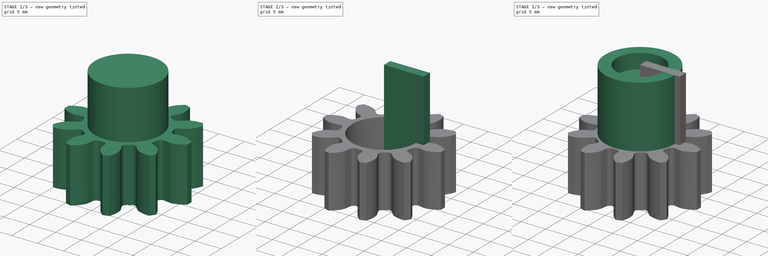
[diagram: build sequence overview — one tinted view per stage of 3, left to right]
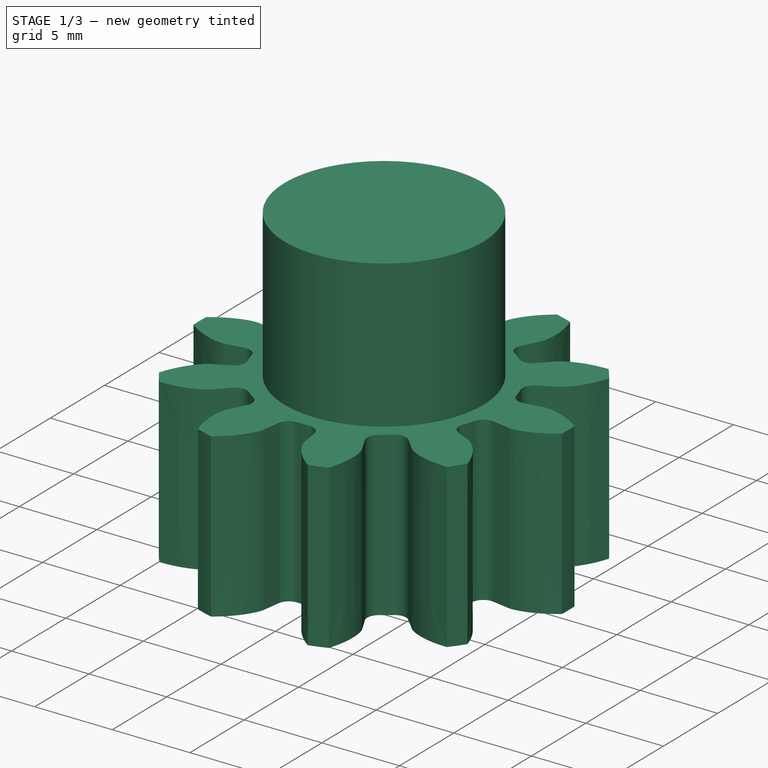
[diagram: stage 1 of 3 — iso view after this stage's code; geometry added in this stage tinted green]
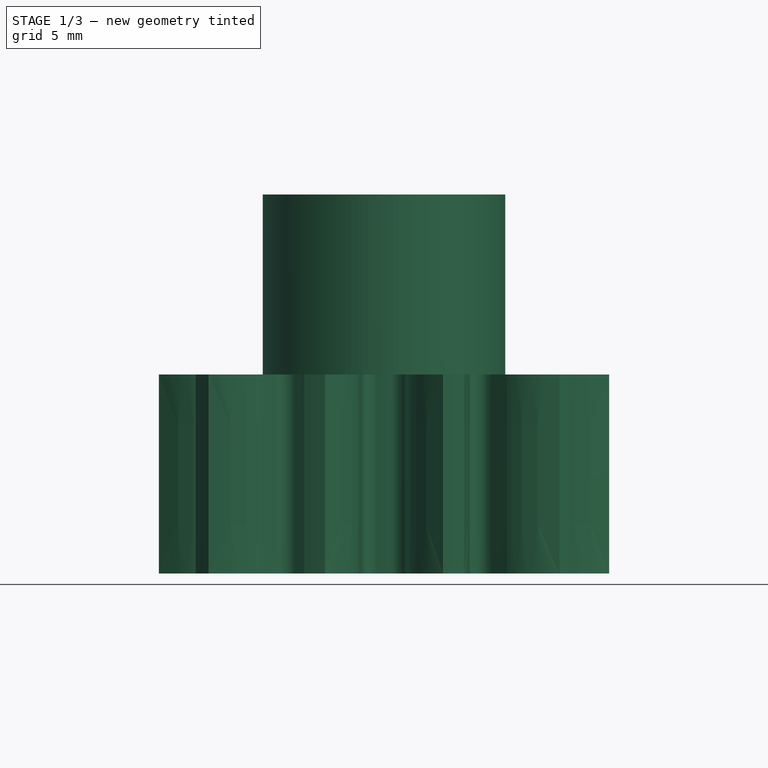
[diagram: stage 1 of 3 — front view after this stage's code; geometry added in this stage tinted green]
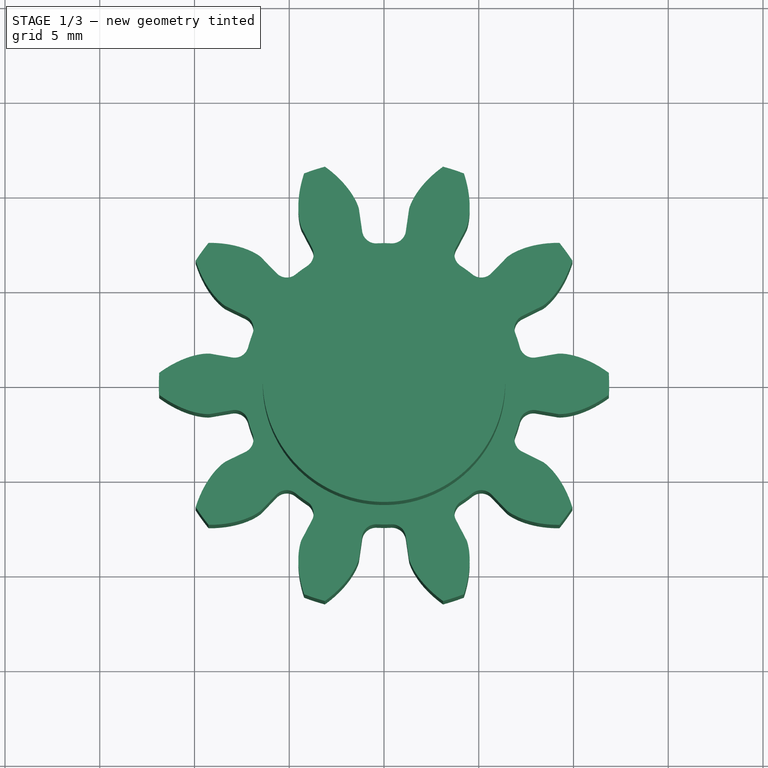
[diagram: stage 1 of 3 — top view after this stage's code; geometry added in this stage tinted green]
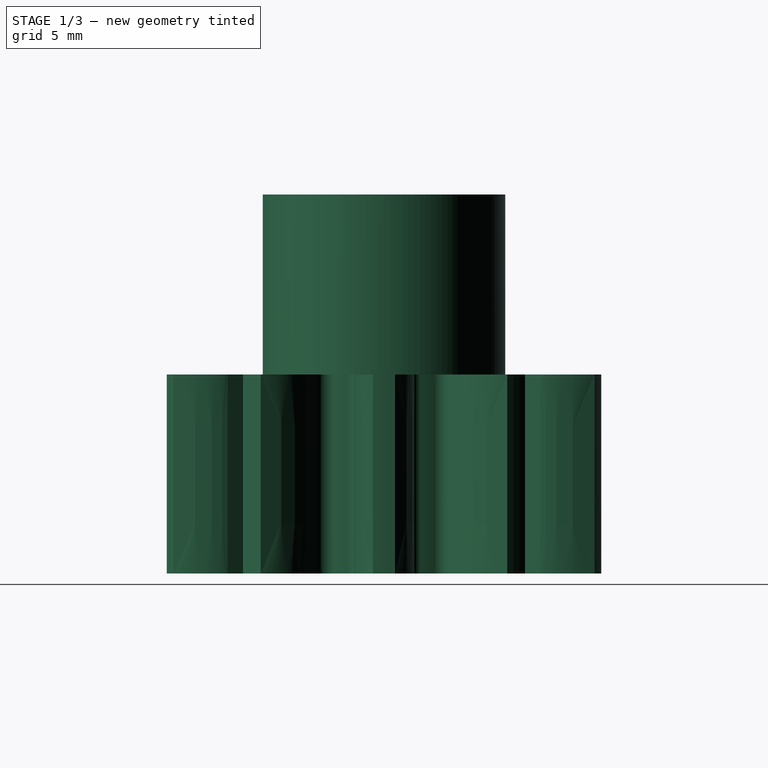
[diagram: stage 1 of 3 — right view after this stage's code; geometry added in this stage tinted green]
FCSTD DOCUMENT  (FreeCAD 0.20R29603 (Git))
Label: EngraneMotorDi_9.4_De14
License: All rights reserved
LicenseURL: http://en.wikipedia.org/wiki/All_rights_reserved
objects: PartDesign::Body×4, App::MeasureDistance×3, Sketcher::SketchObject×3, PartDesign::Pad×3, Part::FeaturePython×2, Part::Part2DObjectPython×1, Part::Extrusion×1, PartDesign::FeatureBase×1, PartDesign::Boolean×1
note: 19 computed .brp shape members not serialized (recipe doc carries the construction recipe); baked Part::Feature solids carry a one-line shape summary decoded from their .brp

FEATURE [Part::Part2DObjectPython] InvoluteGear  # Draft 2D object (typed FeaturePython)
  ExternalGear = true
  HighPrecision = false
  Modules = 1.98
  NumberOfTeeth = 10
  PressureAngle = 20
FEATURE [App::MeasureDistance] Distance  label="Distance: 23.75 mm"
  Distance = 23.7471
  P1 = (9.25979,-7.44221,0)
  P2 = (-9.72302,6.82591,0)
FEATURE [Part::Extrusion] Extrude
  Base = -> InvoluteGear
  Dir = (0,0,1)
  DirMode = 2
  FaceMakerClass = Part::FaceMakerBullseye
  LengthFwd = 10.5
  LengthRev = 0
  Solid = true
  Symmetric = false
FEATURE [PartDesign::FeatureBase] BaseFeature
  BaseFeature = -> Extrude
FEATURE [Sketcher::SketchObject] Sketch
  FullyConstrained = true
  MapMode = 5
  Support = -> [XY_Plane]
  sketch-geometry (1):
    g0: Circle CenterX=0 CenterY=0 CenterZ=0 NormalX=0 NormalY=0 NormalZ=1 AngleXU=0 Radius=6.4
  constraints (2):
    c: Coincident(g0,g-1)
    c: Radius(g0) = 6.4
FEATURE [PartDesign::Pad] Pad
  Direction = (0,0,1)
  Length = 20
  Length2 = 10
  Profile = -> Sketch
  ReferenceAxis = -> Sketch [N_Axis]
  Type = 0
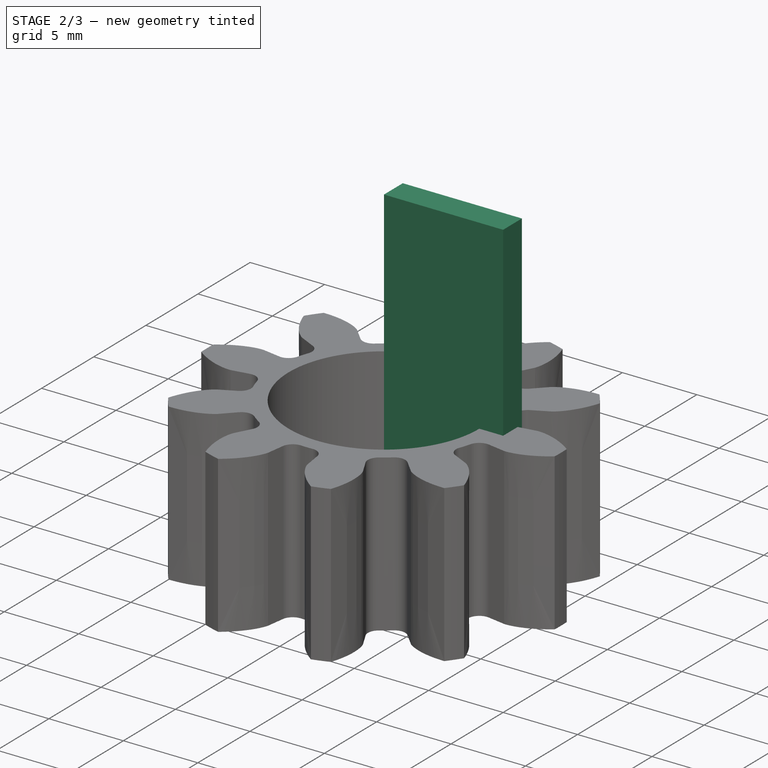
[diagram: stage 2 of 3 — iso view after this stage's code; geometry added in this stage tinted green]
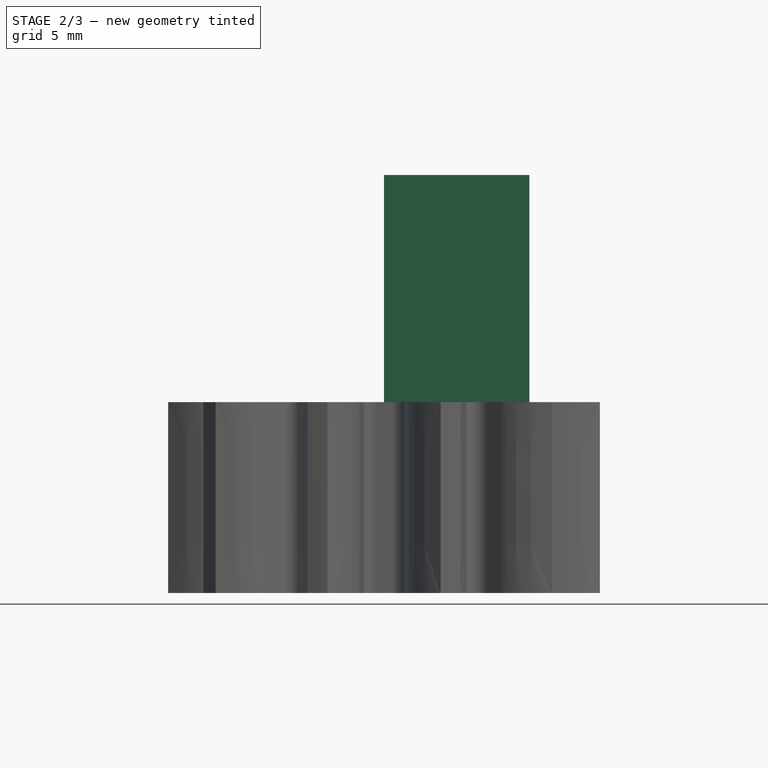
[diagram: stage 2 of 3 — front view after this stage's code; geometry added in this stage tinted green]
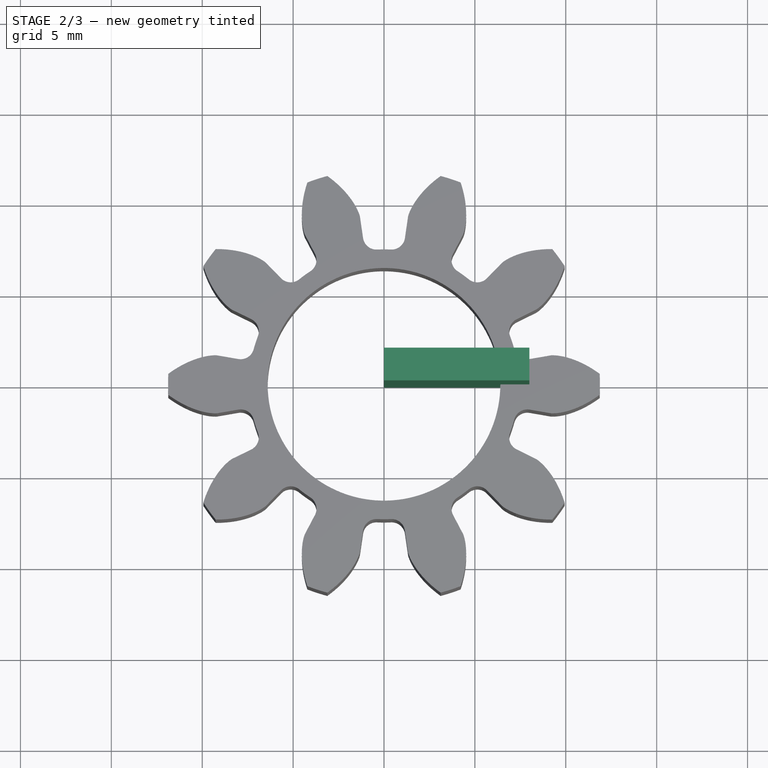
[diagram: stage 2 of 3 — top view after this stage's code; geometry added in this stage tinted green]
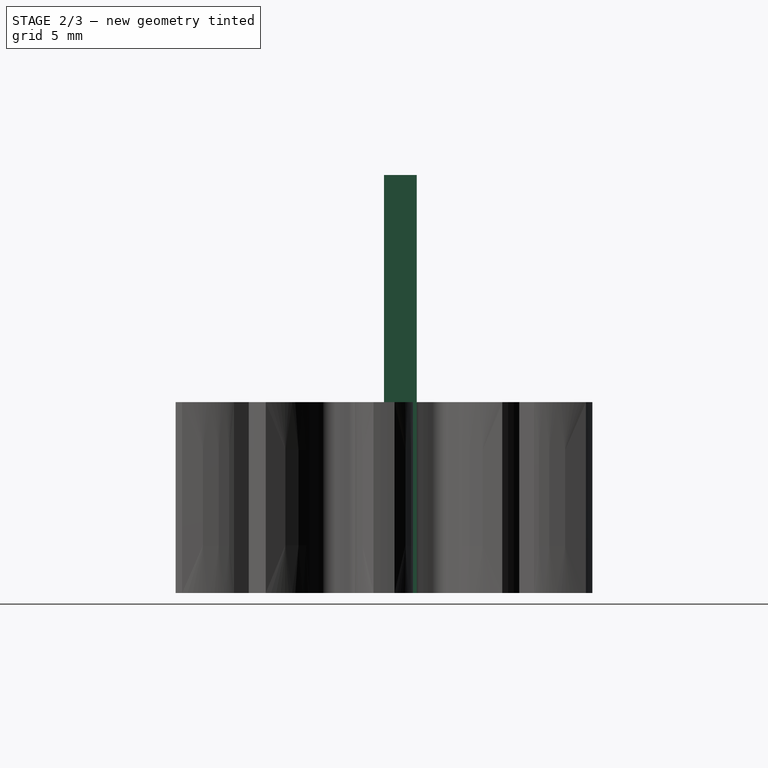
[diagram: stage 2 of 3 — right view after this stage's code; geometry added in this stage tinted green]
FEATURE [Sketcher::SketchObject] Sketch002
  FullyConstrained = true
  MapMode = 5
  Support = -> [XY_Plane004]
  sketch-geometry (4):
    g0: LineSegment StartX=0 StartY=0 StartZ=0 EndX=8 EndY=0 EndZ=0
    g1: LineSegment StartX=8 StartY=0 StartZ=0 EndX=8 EndY=1.8 EndZ=0
    g2: LineSegment StartX=8 StartY=1.8 StartZ=0 EndX=0 EndY=1.8 EndZ=0
    g3: LineSegment StartX=0 StartY=1.8 StartZ=0 EndX=0 EndY=0 EndZ=0
  constraints (11):
    c: Coincident(g0,g1)
    c: Coincident(g1,g2)
    c: Coincident(g2,g3)
    c: Coincident(g3,g0)
    c: Horizontal(g0)
    c: Horizontal(g2)
    c: Vertical(g1)
    c: Vertical(g3)
    c: Coincident(g0,g-1)
    c: DistanceX(g2,g2) = 8
    c: DistanceY(g3,g3) = 1.8
FEATURE [PartDesign::Pad] Pad002
  Direction = (0,0,1)
  Length = 23
  Length2 = 10
  Profile = -> Sketch002
  ReferenceAxis = -> Sketch002 [N_Axis]
  Type = 0
FEATURE [PartDesign::Body] Body003
  Group = -> [Sketch002,Pad002]
  Origin = -> Origin003
  Placement = pos=(-4,2.9,0) rot=(0,0,1;0rad)
  Tip = -> Pad002
FEATURE [PartDesign::Boolean] Boolean
  BaseFeature = -> BaseFeature
  Group = -> [Body]
  Type = 1
FEATURE [PartDesign::Body] Body001
  BaseFeature = -> Extrude
  Group = -> [BaseFeature,InvoluteGear,Boolean]
  Origin = -> Origin001
  Tip = -> Boolean
FEATURE [App::MeasureDistance] Distance001  label="Distance: 7.06 mm"
  Distance = 7.05619
  P1 = (-0.226377,2.7,23)
  P2 = (0.0235562,-4.35176,23)
FEATURE [App::MeasureDistance] Distance002  label="Distance: 8.35 mm"
  Distance = 8.35394
  P1 = (-4.18309,0.0082126,23)
  P2 = (4.15614,-0.487278,23)
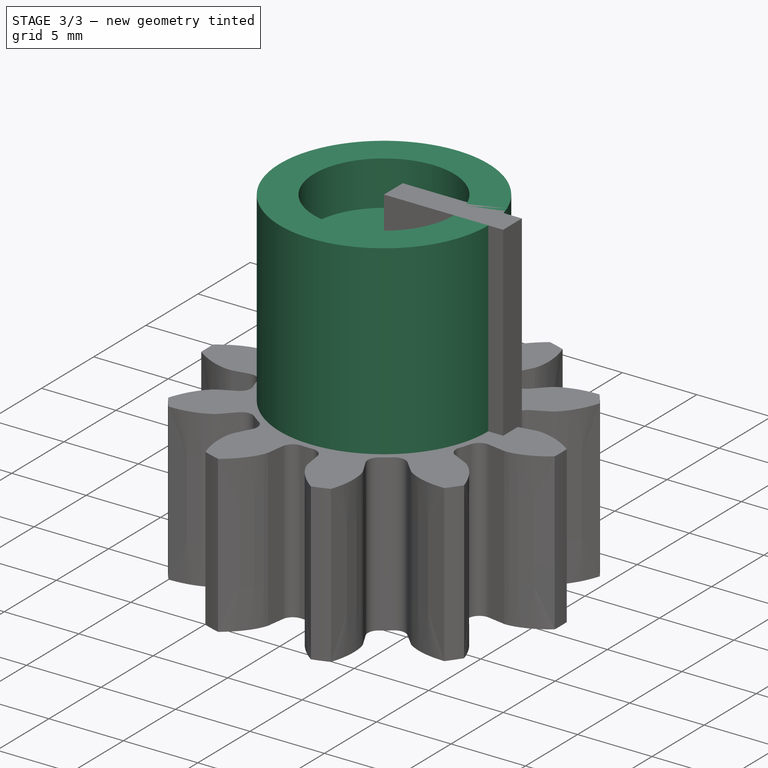
[diagram: stage 3 of 3 — iso view after this stage's code; geometry added in this stage tinted green]
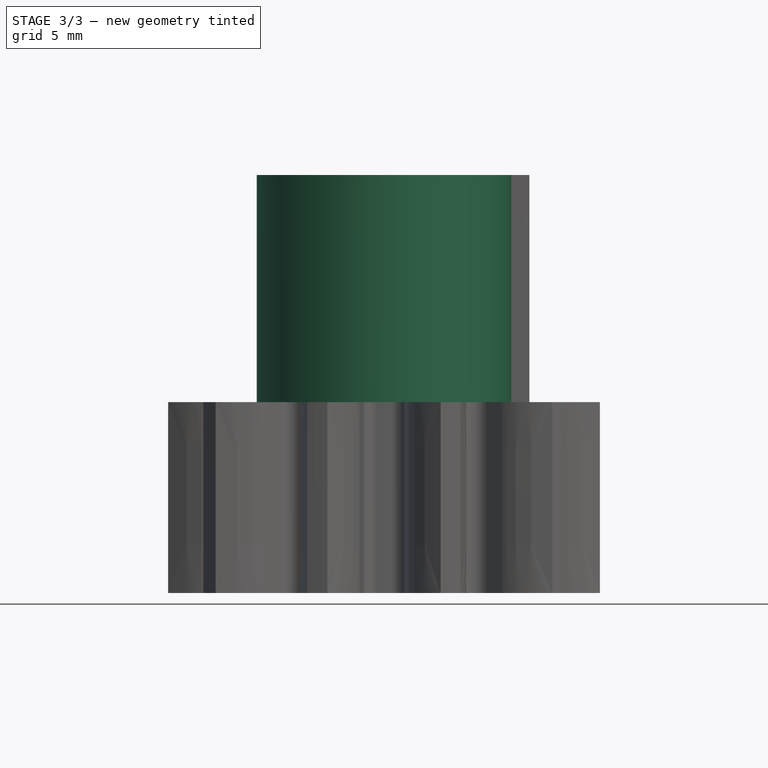
[diagram: stage 3 of 3 — front view after this stage's code; geometry added in this stage tinted green]
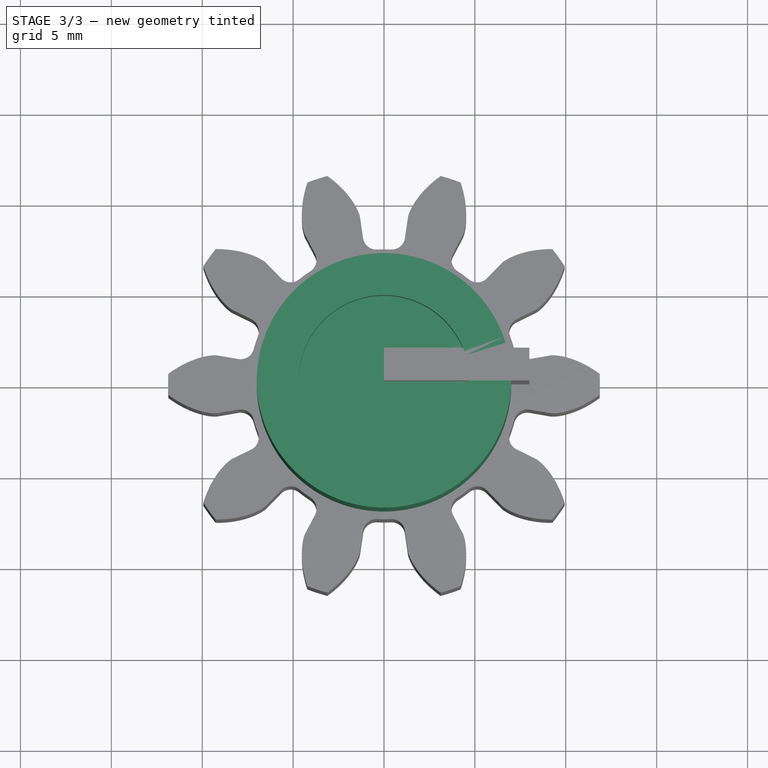
[diagram: stage 3 of 3 — top view after this stage's code; geometry added in this stage tinted green]
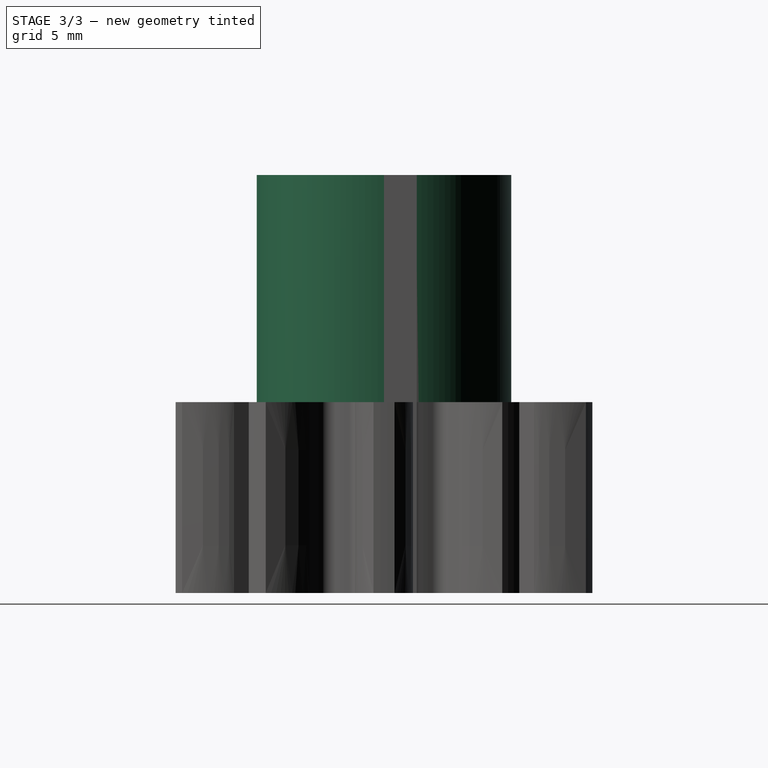
[diagram: stage 3 of 3 — right view after this stage's code; geometry added in this stage tinted green]
FEATURE [Part::FeaturePython] Tube  # WARN: FeaturePython — macro-defined, semantics opaque (R4)
  AttacherType = Attacher::AttachEngine3D
  Height = 20
  InnerRadius = 4
  OuterRadius = 5
FEATURE [PartDesign::Body] Body
  Group = -> [Sketch,Pad]
  Origin = -> Origin
  Tip = -> Pad
FEATURE [Sketcher::SketchObject] Sketch001
  FullyConstrained = true
  MapMode = 5
  Support = -> [XY_Plane002]
  sketch-geometry (1):
    g0: Circle CenterX=0 CenterY=0 CenterZ=0 NormalX=0 NormalY=0 NormalZ=1 AngleXU=0 Radius=5
  constraints (2):
    c: Coincident(g0,g-1)
    c: Radius(g0) = 5
FEATURE [PartDesign::Pad] Pad001
  Direction = (0,0,1)
  Length = 20
  Length2 = 10
  Profile = -> Sketch001
  ReferenceAxis = -> Sketch001 [N_Axis]
  Type = 0
FEATURE [PartDesign::Body] Body002
  Group = -> [Pad001,Sketch001]
  Origin = -> Origin002
  Tip = -> Pad001
FEATURE [Part::FeaturePython] Tube001  # WARN: FeaturePython — macro-defined, semantics opaque (R4)
  AttacherType = Attacher::AttachEngine3D
  Height = 23
  InnerRadius = 4.7
  OuterRadius = 7
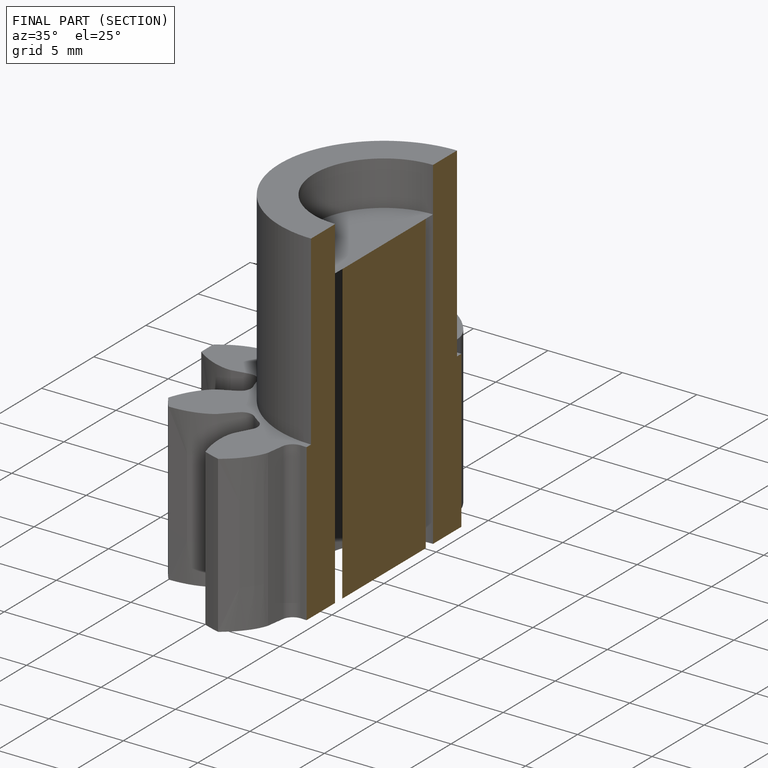
[diagram: finished part — half-section view (interior)]
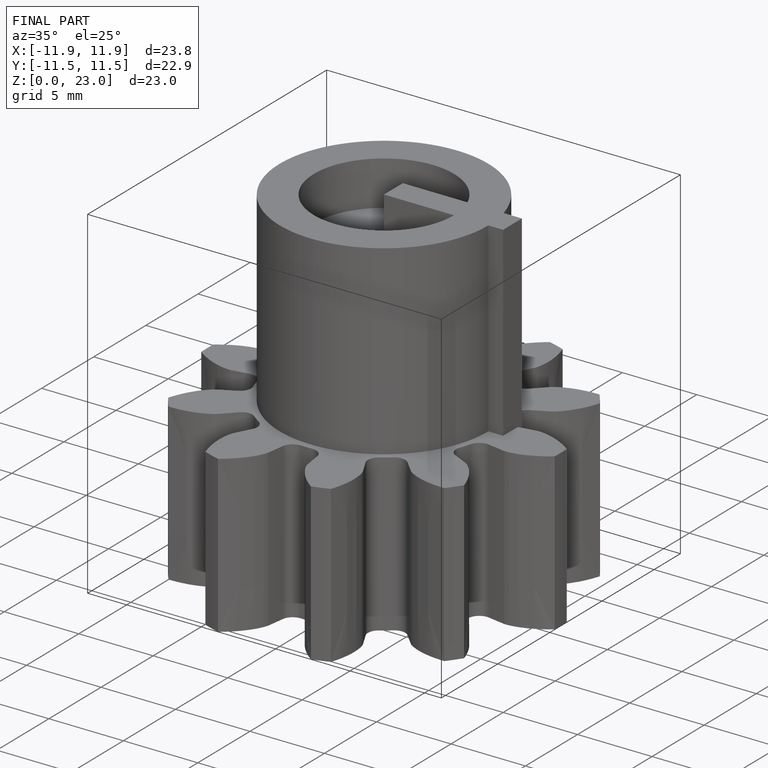
[diagram: finished part — iso view with bounding-box wireframe]
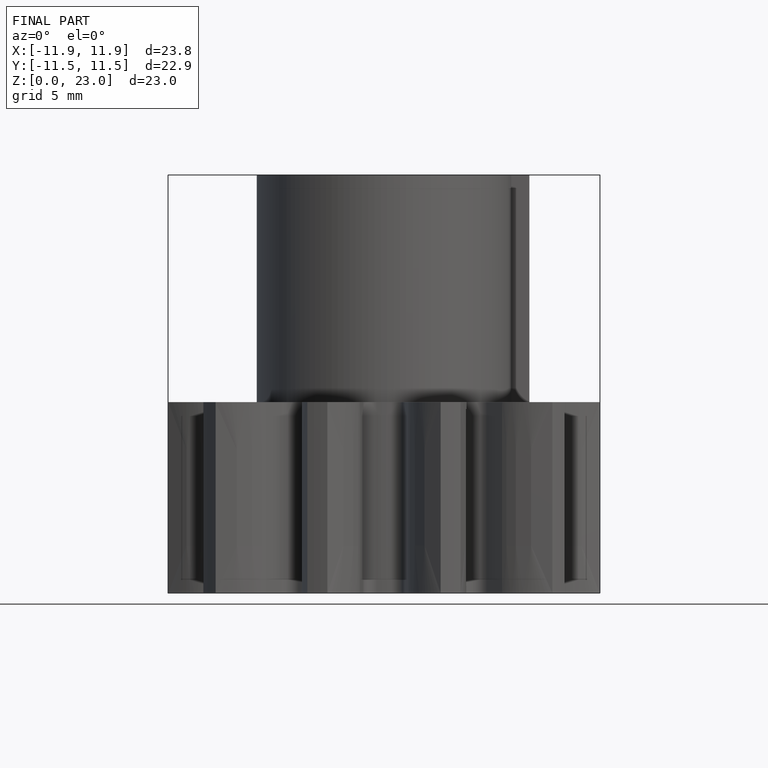
[diagram: finished part — front view with bounding-box wireframe]
